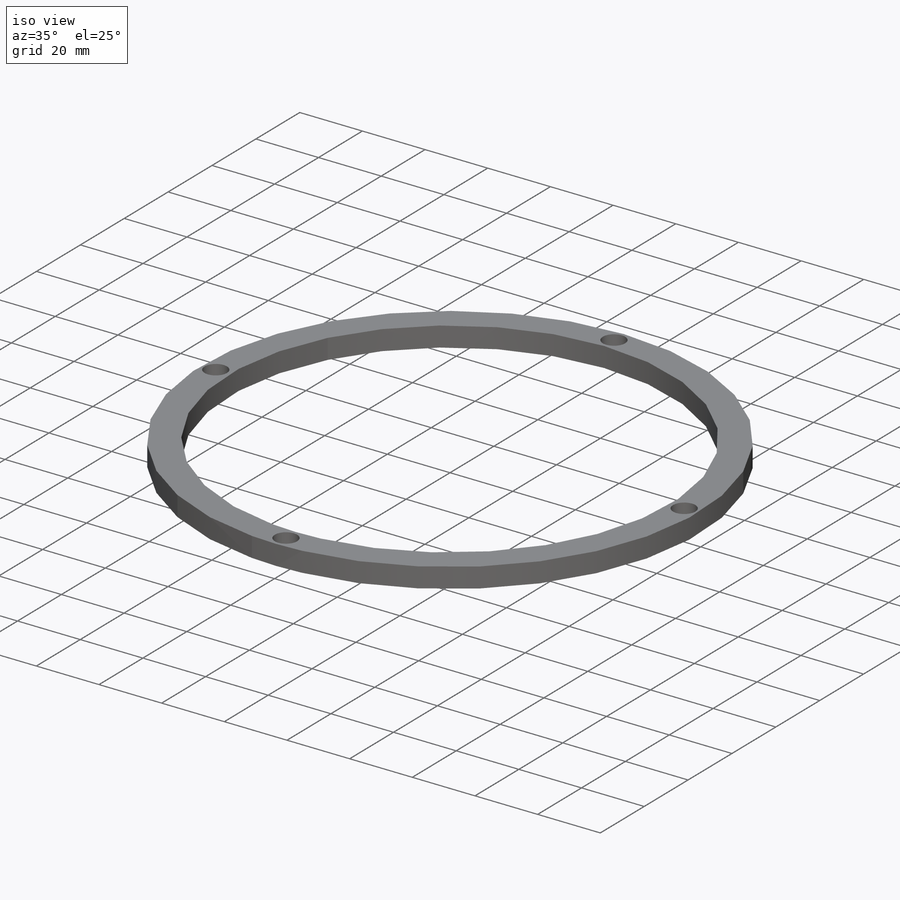
[diagram: iso view]
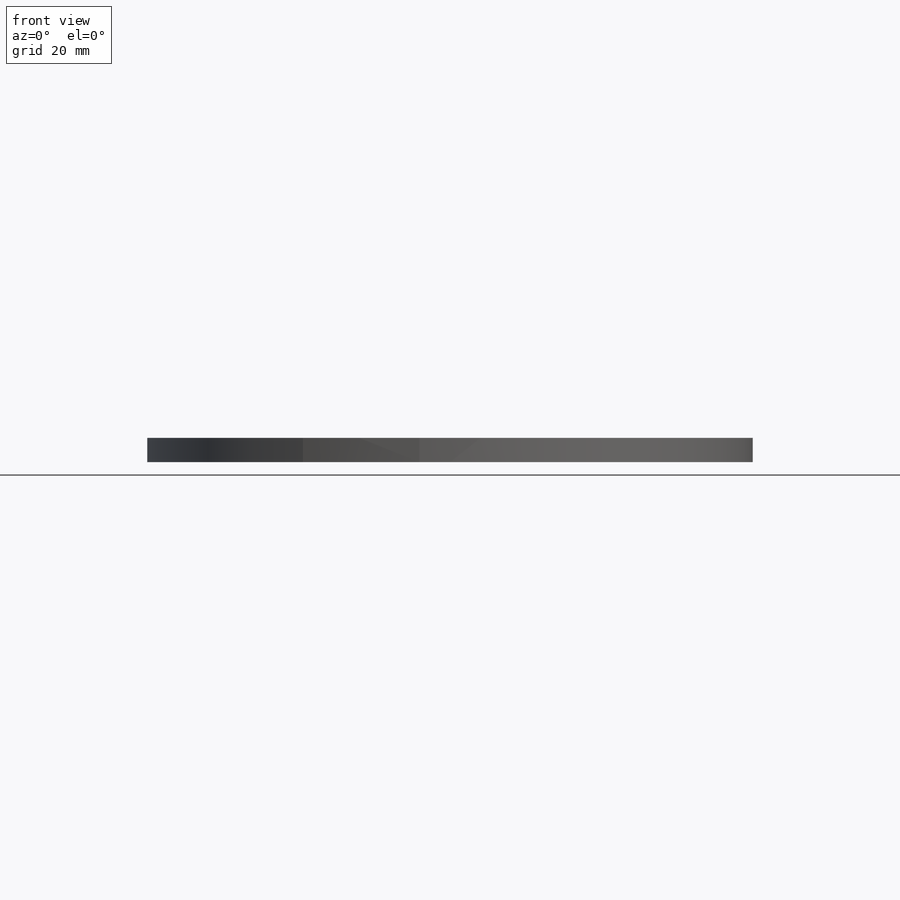
[diagram: front view]
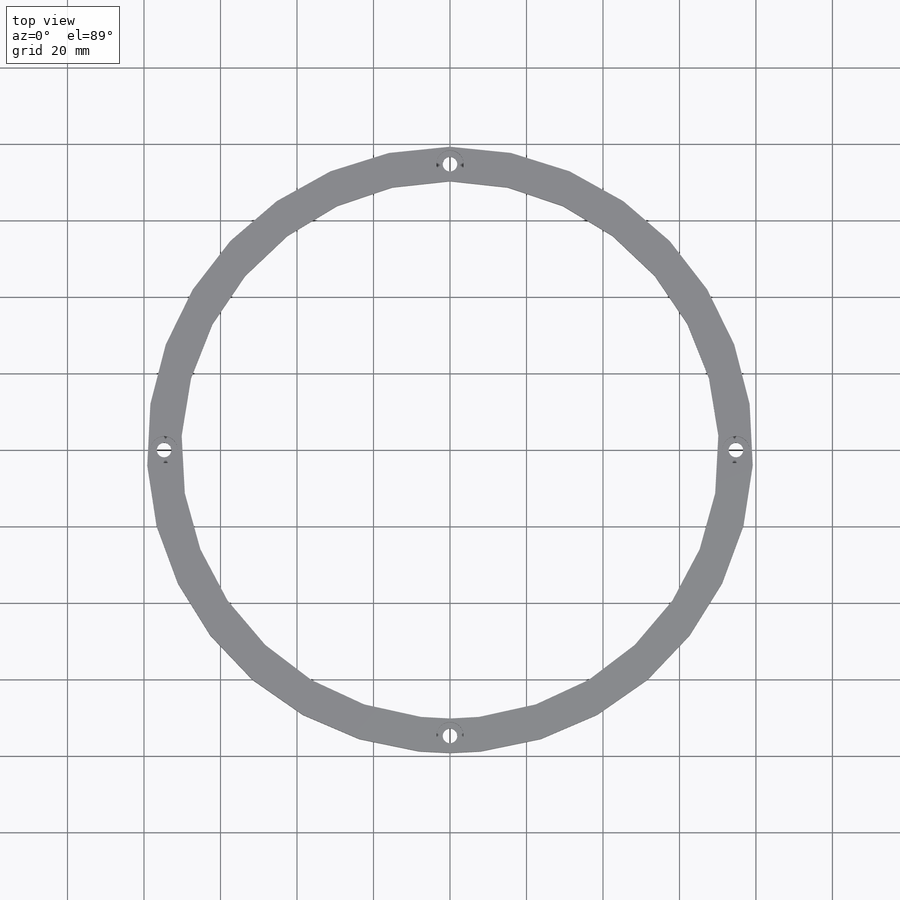
[diagram: top view]
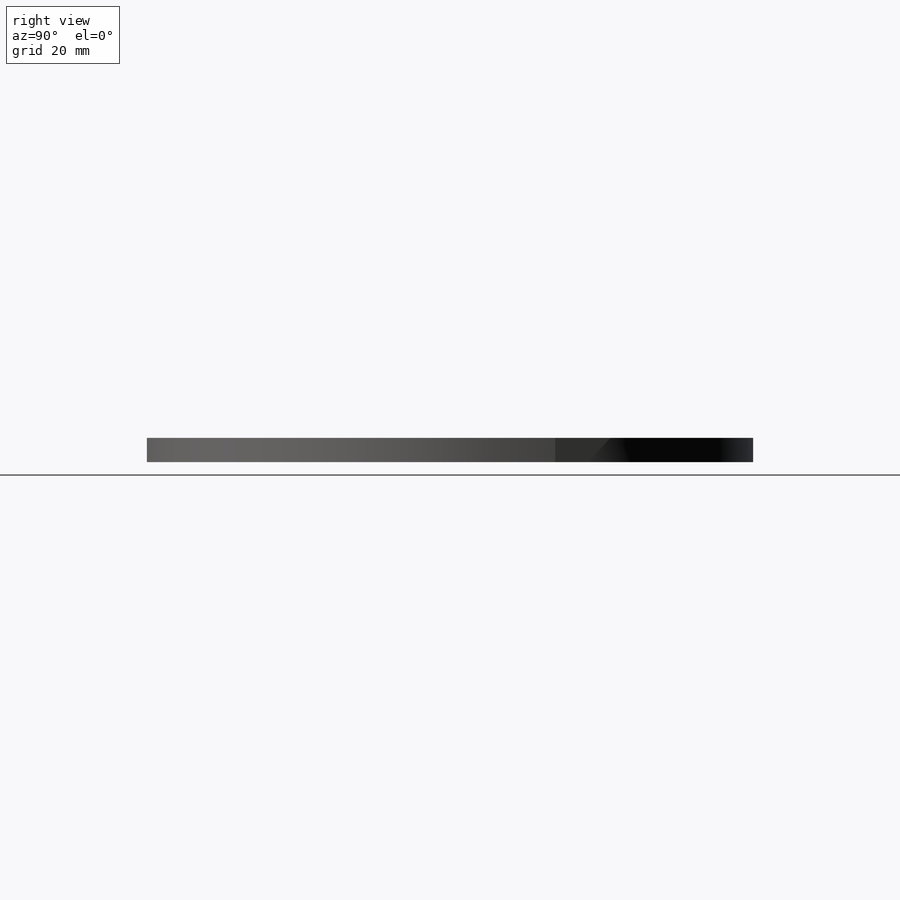
[diagram: right view]
SOLIDWORKS PART (.sldprt)
format: sldprt  version: not decoded by parser v0  size: 187,904 bytes
history: native  units: mm
features: sketch x3, material x1, extrude x1, hole x1 (+11 scaffold rows collapsed)
feature tree (17):
  scaffold x11  (default folders/planes/origin — collapsed)
  material  "Material <not specified>"
  sketch  "Sketch1"  dims[D1=158.496mm D2=140.5128mm]
  extrude  "Extrude2"  Depth=6.35mm
  hole  "CBORE for #6 Socket Head Cap Screw1"  Diameter=3.7973mm Depth=6.35mm
  sketch  "3DSketch2"  dims[c1.D1=~103.39586mm c1.D2=105.41mm c2.D2=~105.416472mm c2.D3=105.41mm c3.D3=~149.077607mm c3.D4=~149.077607mm c4.D4=~149.292492mm c4.D5=149.098mm c5.D5=~107.307086mm c5.D6=105.41mm c6.D6=~105.848177mm c6.D7=~105.848177mm c7.D6=~73.11882mm c7.D7=74.549mm c8.D7=~74.32707mm c8.D8=74.549mm c8.D1=~74.616751mm c8.D2=74.7522mm c9.D1=74.7522mm c9.D2=74.7522mm c9.D3=74.7522mm c9.D4=74.7522mm]
  sketch  "Sketch3"  dims[hole-wizard template sketch: 42 standard entries collapsed; hole parameters kept: c12.Thru Hole Depth=6.35mm c12.C'Bore Dia.=~7.14502mm c12.C'Bore Depth=3.5052mm]
decode coverage: 5 of 5 modeling features carry decoded parameters
note: ~ marks probable driven/reference dimensions
note: suppression state not decoded; provenance and decode notes live in map.json
